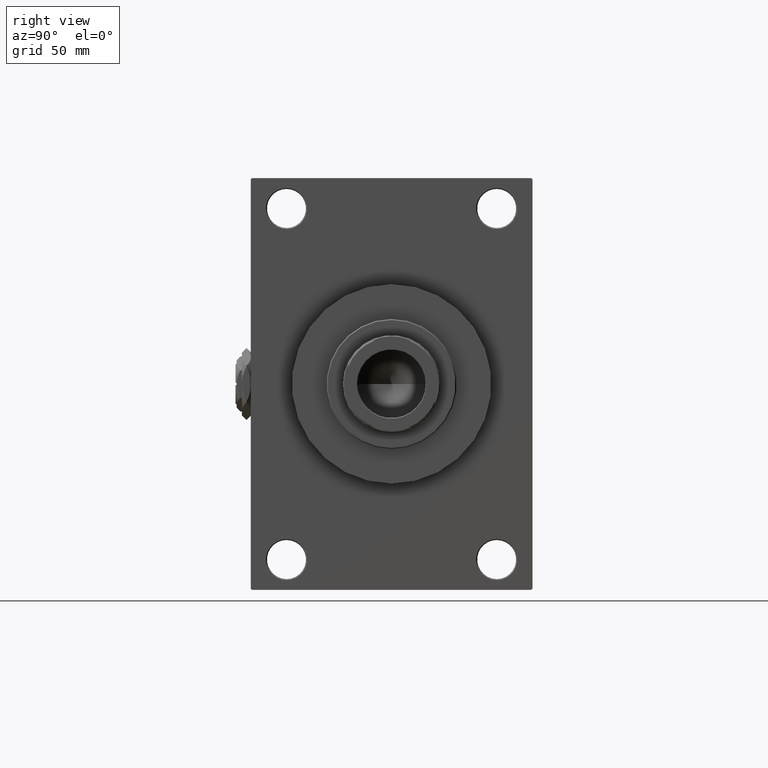
[diagram: clean part render]
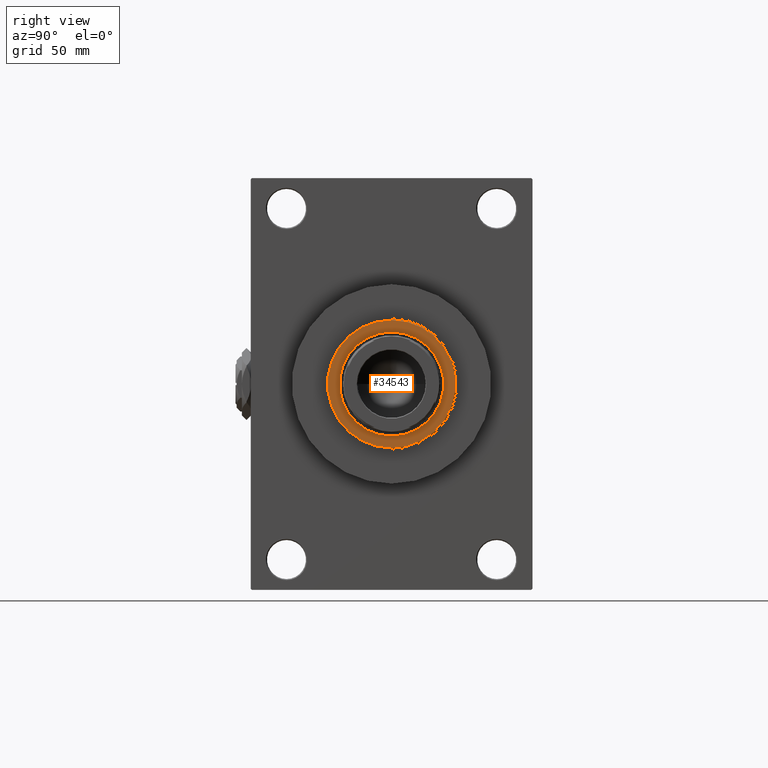
[diagram: same view with one face highlighted and labeled with its STEP entity id]
A machine part, right view. The second image highlights one B-rep face of the part: STEP entity #34543.
In plain terms, the highlighted planar face has unit normal (1, -0, -0).
Its self-contained STEP definition (entity closure, byte-faithful):
#661 = EDGE_LOOP ( 'NONE', ( #7107, #20603 ) ) ;
#1255 = FACE_BOUND ( 'NONE', #42393, .T. ) ;
#1853 = ORIENTED_EDGE ( 'NONE', *, *, #27588, .F. ) ;
#2376 = CARTESIAN_POINT ( 'NONE',  ( -29.50000000000000000, 0.000000000000000000, 52.25999999999999801 ) ) ;
#2780 = DIRECTION ( 'NONE',  ( 1.000000000000000000, 0.000000000000000000, 0.000000000000000000 ) ) ;
#5152 = VERTEX_POINT ( 'NONE', #16416 ) ;
#5771 = AXIS2_PLACEMENT_3D ( 'NONE', #9522, #44520, #44772 ) ;
#5780 = DIRECTION ( 'NONE',  ( 1.000000000000000000, 0.000000000000000000, -0.000000000000000000 ) ) ;
#6539 = CARTESIAN_POINT ( 'NONE',  ( 0.000000000000000000, 0.000000000000000000, 52.25999999999999801 ) ) ;
#7046 = VERTEX_POINT ( 'NONE', #25227 ) ;
#7107 = ORIENTED_EDGE ( 'NONE', *, *, #9873, .T. ) ;
#8132 = ORIENTED_EDGE ( 'NONE', *, *, #43306, .F. ) ;
#9208 = DIRECTION ( 'NONE',  ( 0.000000000000000000, 0.000000000000000000, 1.000000000000000000 ) ) ;
#9310 = CIRCLE ( 'NONE', #19758, 29.50000000000000000 ) ;
#9522 = CARTESIAN_POINT ( 'NONE',  ( 0.000000000000000000, 0.000000000000000000, 52.25999999999999801 ) ) ;
#9787 = CIRCLE ( 'NONE', #5771, 24.00000000000000355 ) ;
#9873 = EDGE_CURVE ( 'NONE', #15484, #40850, #10401, .T. ) ;
#10401 = CIRCLE ( 'NONE', #15303, 29.50000000000000000 ) ;
#11070 = CIRCLE ( 'NONE', #20694, 24.00000000000000355 ) ;
#12322 = PLANE ( 'NONE',  #18910 ) ;
#15303 = AXIS2_PLACEMENT_3D ( 'NONE', #6539, #27627, #42036 ) ;
#15484 = VERTEX_POINT ( 'NONE', #2376 ) ;
#16416 = CARTESIAN_POINT ( 'NONE',  ( -24.00000000000000355, 2.939152317953648289E-15, 52.25999999999999801 ) ) ;
#16608 = FACE_OUTER_BOUND ( 'NONE', #661, .T. ) ;
#18910 = AXIS2_PLACEMENT_3D ( 'NONE', #27672, #48063, #5780 ) ;
#19758 = AXIS2_PLACEMENT_3D ( 'NONE', #44210, #9208, #24554 ) ;
#20603 = ORIENTED_EDGE ( 'NONE', *, *, #39545, .T. ) ;
#20694 = AXIS2_PLACEMENT_3D ( 'NONE', #49071, #22629, #2780 ) ;
#22629 = DIRECTION ( 'NONE',  ( 0.000000000000000000, 0.000000000000000000, 1.000000000000000000 ) ) ;
#24554 = DIRECTION ( 'NONE',  ( 1.000000000000000000, 0.000000000000000000, 0.000000000000000000 ) ) ;
#25227 = CARTESIAN_POINT ( 'NONE',  ( 24.00000000000000355, 0.000000000000000000, 52.25999999999999801 ) ) ;
#27588 = EDGE_CURVE ( 'NONE', #7046, #5152, #9787, .T. ) ;
#27627 = DIRECTION ( 'NONE',  ( 0.000000000000000000, 0.000000000000000000, 1.000000000000000000 ) ) ;
#27672 = CARTESIAN_POINT ( 'NONE',  ( 0.000000000000000000, 0.000000000000000000, 52.25999999999999801 ) ) ;
#34543 = ADVANCED_FACE ( 'NONE', ( #1255, #16608 ), #12322, .T. ) ;
#39545 = EDGE_CURVE ( 'NONE', #40850, #15484, #9310, .T. ) ;
#40850 = VERTEX_POINT ( 'NONE', #46439 ) ;
#42036 = DIRECTION ( 'NONE',  ( 1.000000000000000000, 0.000000000000000000, 0.000000000000000000 ) ) ;
#42393 = EDGE_LOOP ( 'NONE', ( #1853, #8132 ) ) ;
#43306 = EDGE_CURVE ( 'NONE', #5152, #7046, #11070, .T. ) ;
#44210 = CARTESIAN_POINT ( 'NONE',  ( 0.000000000000000000, 0.000000000000000000, 52.25999999999999801 ) ) ;
#44520 = DIRECTION ( 'NONE',  ( 0.000000000000000000, 0.000000000000000000, 1.000000000000000000 ) ) ;
#44772 = DIRECTION ( 'NONE',  ( 1.000000000000000000, 0.000000000000000000, 0.000000000000000000 ) ) ;
#46439 = CARTESIAN_POINT ( 'NONE',  ( 29.50000000000000000, 3.643324227463375391E-15, 52.25999999999999801 ) ) ;
#48063 = DIRECTION ( 'NONE',  ( 0.000000000000000000, 0.000000000000000000, 1.000000000000000000 ) ) ;
#49071 = CARTESIAN_POINT ( 'NONE',  ( 0.000000000000000000, 0.000000000000000000, 52.25999999999999801 ) ) ;